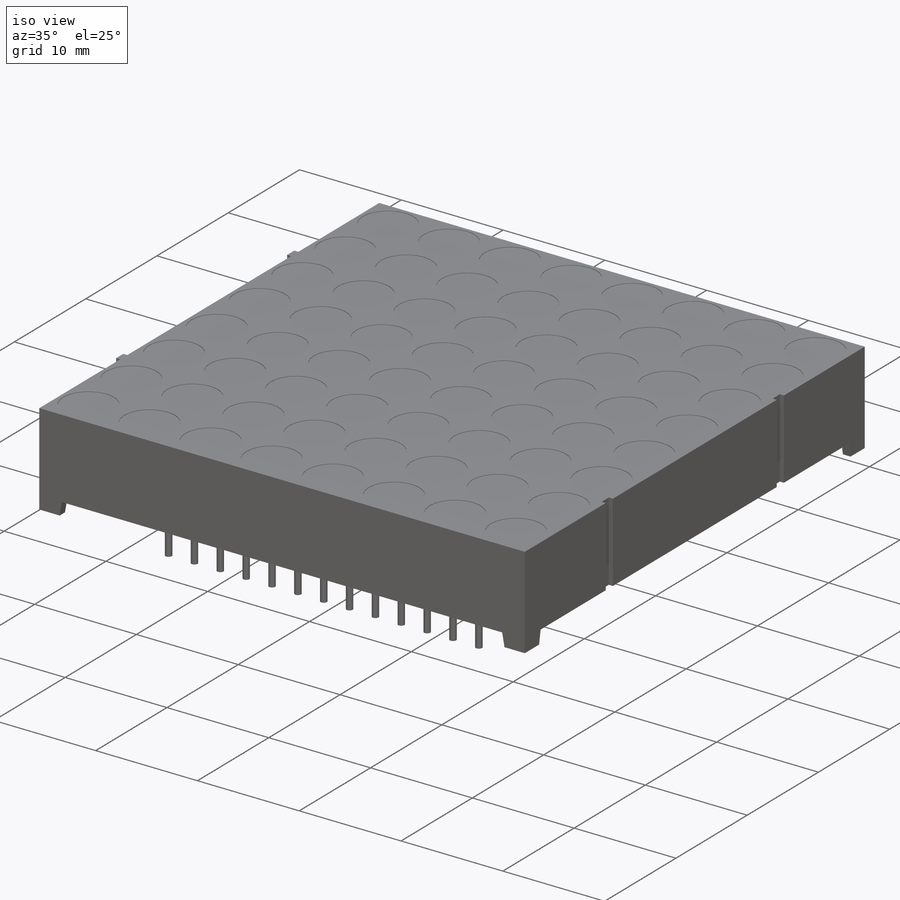
[diagram: iso view]
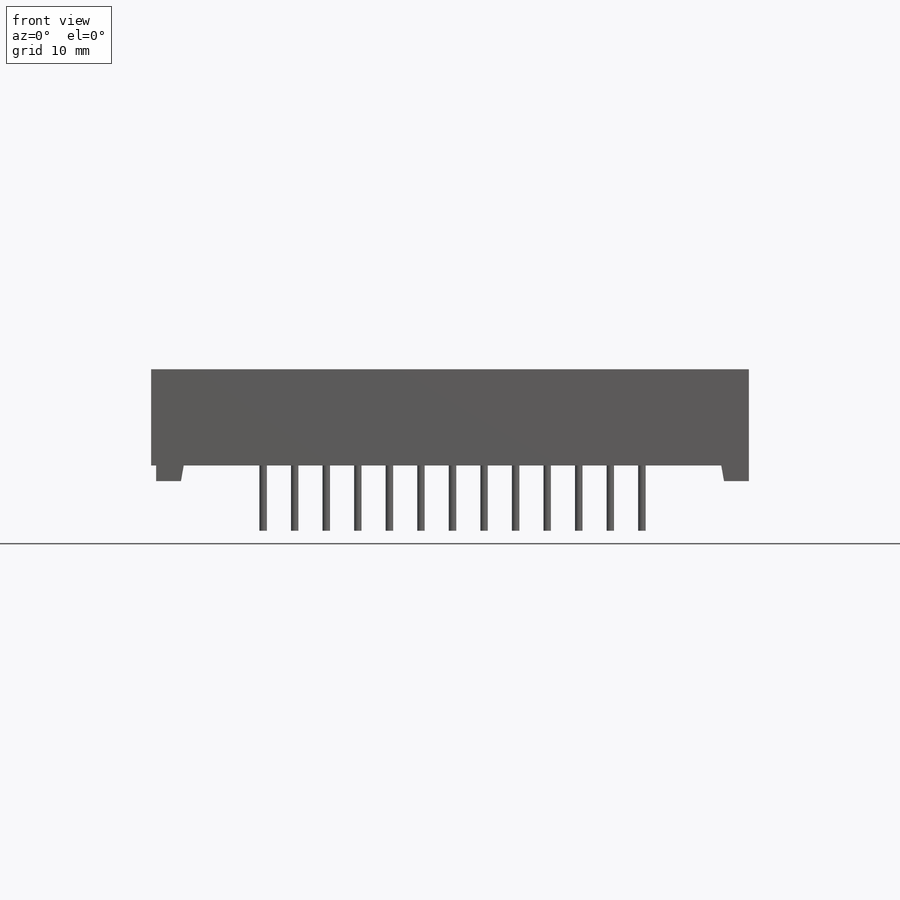
[diagram: front view]
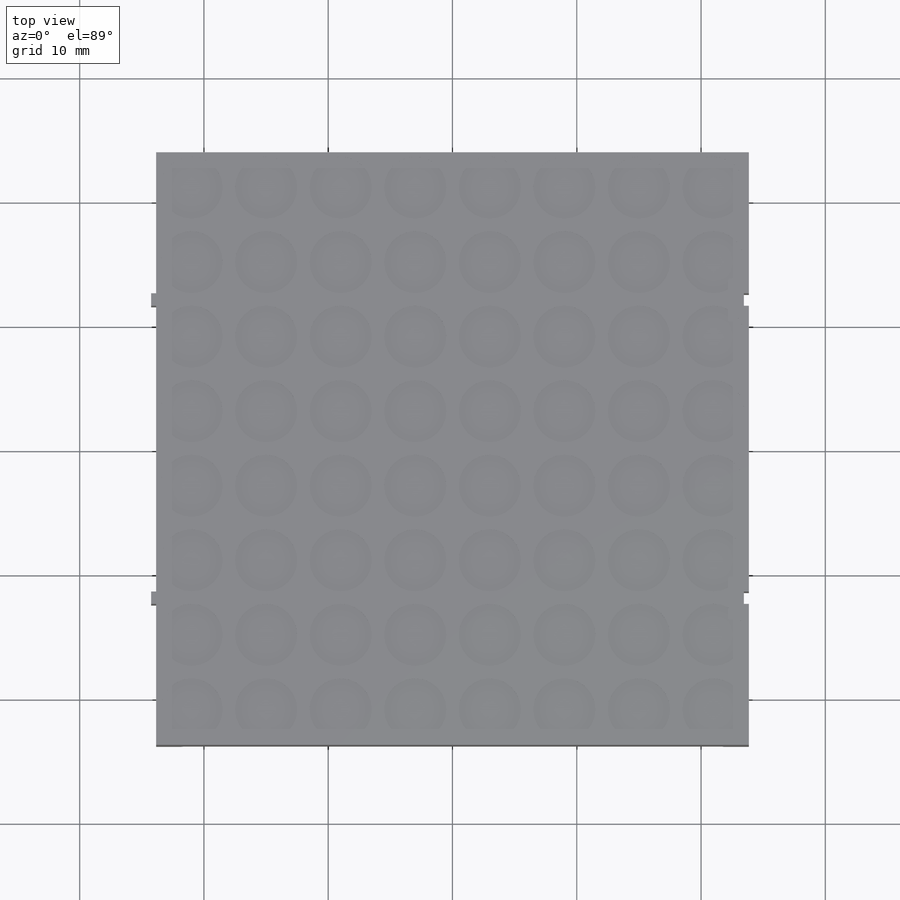
[diagram: top view]
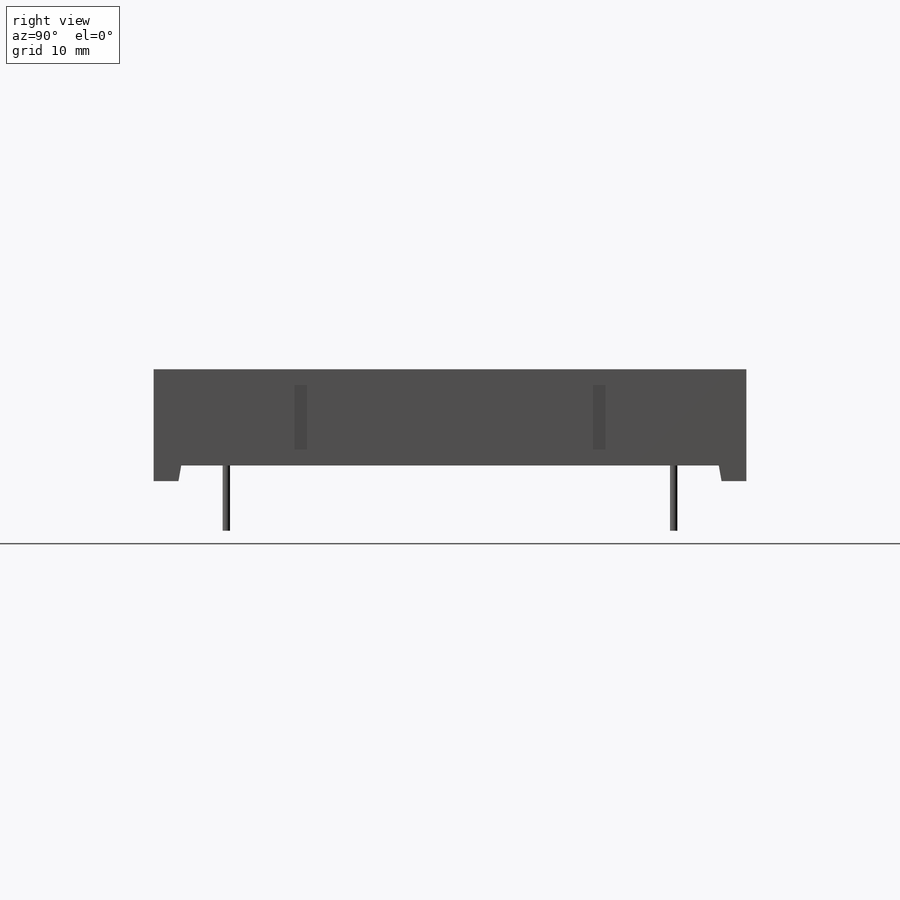
[diagram: right view]
SOLIDWORKS PART (.sldprt)
format: sldprt  version: not decoded by parser v0  size: 1,159,680 bytes
history: native  units: mm
features: sketch x9, cut_extrude x5, extrude x4, material x1 (+11 scaffold rows collapsed)
feature tree (30):
  scaffold x11  (default folders/planes/origin — collapsed)
  material  "Material <not specified>"
  sketch  "Sketch1"  dims[c1.D1=47.7mm c1.D2=9.0mm c1.D3=1.25mm c1.D4=3.0mm c1.D5=3.0mm c2.D4=2.0mm c2.D6=1.25mm c3.D6=80.0deg c3.D5=2.0mm c3.D7=1.25mm c4.D7=80.0deg]
  extrude  "Extrude1"  Depth=47.7mm
  sketch  "Sketch2"  dims[c1.D1=2.0mm c1.D2=5.0mm c2.D1=6.0mm c2.D3=6.0mm c2.D4=6.0mm c2.D5=6.0mm c2.D6=6.0mm c2.D7=6.0mm c2.D8=6.0mm c2.D9=6.0mm c2.D10=6.0mm c2.D11=6.0mm c2.D12=0.5mm c2.D13=9.9mm c2.D14=20.2mm c2.D15=10.4mm c2.D16=9.9mm c2.D17=9.9mm c2.D18=9.9mm c2.D19=10.4mm c2.D20=20.2mm c2.D21=10.94mm c2.D22=9.9mm c2.D23=~24.048725mm c2.D24=20.2mm c3.D23=9.9mm c3.D25=0.5mm c3.D26=10.4mm c3.D27=9.9mm c3.D28=20.2mm c3.D29=9.9mm c3.D30=0.5mm]
  sketch  "Sketch3"  dims[c1.D1=1.5mm c1.D2=3.0mm c1.D3=3.0mm c2.D1=1.5mm c3.D1=90.0deg c4.D1=1.5mm c5.D1=80.0deg c5.D2=1.25mm c5.D3=2.0mm c6.D2=1.25mm c7.D2=80.0deg c7.D4=2.0mm c7.D5=1.25mm]
  cut_extrude  "Cut-Extrude1"  [1 undecoded]
  cut_extrude  "Cut-Extrude2"  Depth=0.05mm
  sketch  "Sketch4"  dims[c1.D9=0.6mm c1.D16=0.6mm c1.D1=2.54mm c1.D2=2.54mm c1.D3=2.54mm c1.D4=0.5mm c1.D5=0.5mm c1.D6=2.54mm c1.D7=2.54mm c1.D8=7.62mm c2.D1=2.54mm c2.D2=2.54mm c2.D3=2.54mm c2.D4=2.54mm c2.D5=2.54mm c2.D6=7.62mm c2.D7=0.75mm c2.D8=0.75mm c3.D1=2.54mm c3.D2=2.54mm c3.D3=2.54mm c3.D4=2.54mm c3.D5=2.54mm c3.D6=2.54mm c3.D10=3.83mm c3.D11=45.72mm c4.D10=2.54mm c4.D11=2.54mm c4.D12=2.54mm c4.D13=2.54mm c4.D14=36.0mm c4.D15=2.54mm c4.D16=5.08mm]
  extrude  "Extrude2"  [1 undecoded]
  extrude  "Extrude3"  [1 undecoded]
  sketch  "Sketch4<3>"  dims[D1=4.0mm]
  cut_extrude  "Cut-Extrude3"  [1 undecoded]
  sketch  "Sketch4<4>"
  sketch  "Sketch5"  dims[D1=0.4mm D2=0.4mm D3=0.4mm]
  cut_extrude  "Cut-Extrude4"  [1 undecoded]
  extrude  "Extrude4"  [1 undecoded]
  sketch  "Sketch5<3>"
  sketch  "Sketch6"
  cut_extrude  "Cut-Extrude5"  Depth=0.001mm
decode coverage: 9 of 18 modeling features carry decoded parameters
note: ~ marks probable driven/reference dimensions
note: 6 parameter values undecoded
summary: no parameter record found for 6 features
note: suppression state not decoded; provenance and decode notes live in map.json
